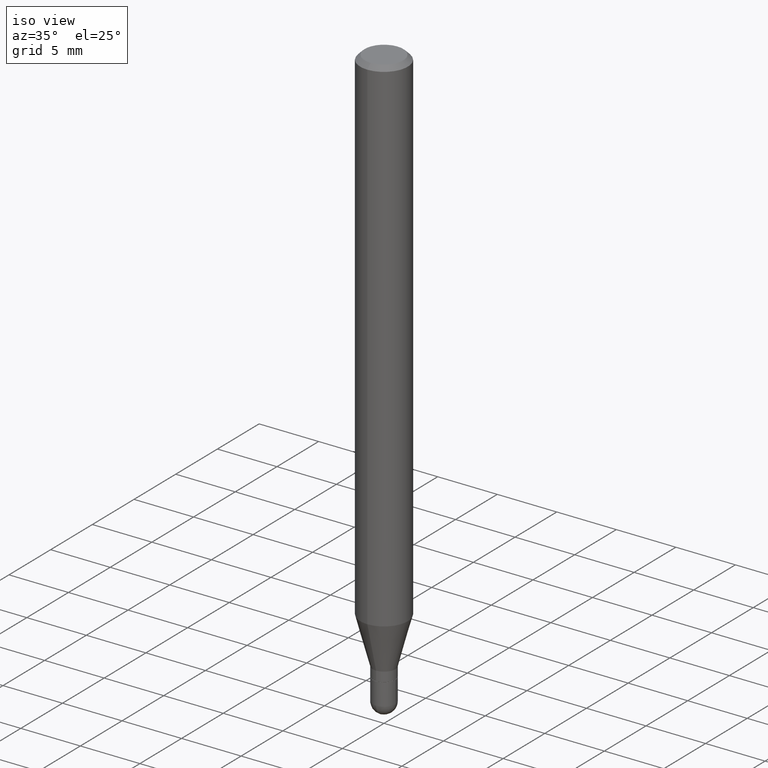
[diagram: clean part render]
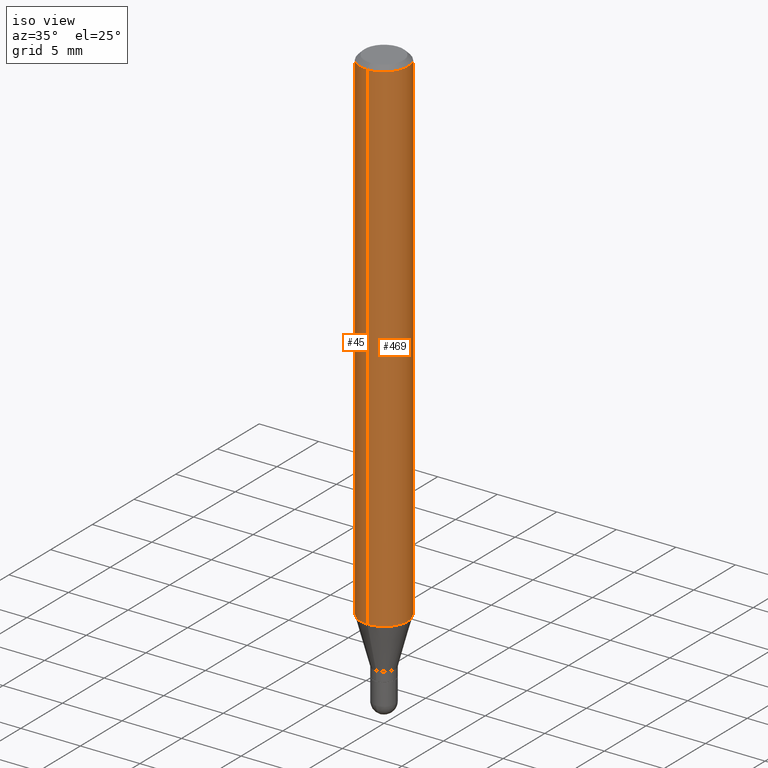
[diagram: same view with one multi-face feature highlighted, each face labeled with its STEP entity id]
A machine part, iso view. The highlighted faces form ONE feature: a constant-radius fillet chain: 2 tangent blend faces with common blend radius 2.0002 mm. The faces share edges in the B-rep.
Their STEP definitions:
[1] entity #45 (Cylinder):
#9 = DIRECTION ( 'NONE',  ( -2.445444900706578132E-29, 3.491515572849056349E-15, 1.000000000000000000 ) ) ;
#10 = CARTESIAN_POINT ( 'NONE',  ( 5.595524044111200197E-16, 0.07874999999999994504, -0.01500000000000004108 ) ) ;
#11 = ORIENTED_EDGE ( 'NONE', *, *, #265, .F. ) ;
#16 = DIRECTION ( 'NONE',  ( -2.445444900706578413E-29, 3.491515572849055955E-15, 1.000000000000000000 ) ) ;
#18 = EDGE_LOOP ( 'NONE', ( #459, #306, #136, #11 ) ) ;
#19 = CARTESIAN_POINT ( 'NONE',  ( -5.499083108677933457E-16, -0.07875000000000000056, 2.749568513618631485E-16 ) ) ;
#21 = VERTEX_POINT ( 'NONE', #222 ) ;
#31 = CARTESIAN_POINT ( 'NONE',  ( 5.595524044111194280E-16, 0.07874999999999411637, -1.672179699107027684 ) ) ;
#39 = DIRECTION ( 'NONE',  ( -2.445444900706578413E-29, 3.491515572849055955E-15, 1.000000000000000000 ) ) ;
#45 = ADVANCED_FACE ( 'NONE', ( #202 ), #159, .T. ) ;
#57 = CARTESIAN_POINT ( 'NONE',  ( 4.089223318246340939E-29, -5.838441460034234985E-15, -1.672179699107027462 ) ) ;
#82 = CARTESIAN_POINT ( 'NONE',  ( 3.668167351059810218E-31, -5.237273359273502137E-17, -0.01499999999999976526 ) ) ;
#85 = AXIS2_PLACEMENT_3D ( 'NONE', #82, #39, #102 ) ;
#102 = DIRECTION ( 'NONE',  ( -6.982962677686264344E-15, -1.000000000000000000, 3.496114991891765576E-15 ) ) ;
#136 = ORIENTED_EDGE ( 'NONE', *, *, #402, .T. ) ;
#159 = CYLINDRICAL_SURFACE ( 'NONE', #177, 0.07875000000000000056 ) ;
#177 = AXIS2_PLACEMENT_3D ( 'NONE', #197, #275, #363 ) ;
#178 = DIRECTION ( 'NONE',  ( -2.445444900706578132E-29, 3.491515572849056349E-15, 1.000000000000000000 ) ) ;
#197 = CARTESIAN_POINT ( 'NONE',  ( 0.000000000000000000, 0.000000000000000000, 0.000000000000000000 ) ) ;
#202 = FACE_OUTER_BOUND ( 'NONE', #18, .T. ) ;
#204 = LINE ( 'NONE', #251, #348 ) ;
#216 = LINE ( 'NONE', #19, #453 ) ;
#220 = VERTEX_POINT ( 'NONE', #10 ) ;
#222 = CARTESIAN_POINT ( 'NONE',  ( -5.499083108677930499E-16, -0.07875000000000004219, -0.01499999999999948944 ) ) ;
#232 = CARTESIAN_POINT ( 'NONE',  ( -5.499083108677527193E-16, -0.07875000000000587086, -1.672179699107027018 ) ) ;
#241 = DIRECTION ( 'NONE',  ( -6.982962677686264344E-15, -1.000000000000000000, 3.469013325287953293E-15 ) ) ;
#251 = CARTESIAN_POINT ( 'NONE',  ( 5.595524044110787031E-16, 0.07875000000000000056, -2.749568513618631485E-16 ) ) ;
#265 = EDGE_CURVE ( 'NONE', #220, #21, #361, .T. ) ;
#275 = DIRECTION ( 'NONE',  ( -2.445444900706578413E-29, 3.491515572849055955E-15, 1.000000000000000000 ) ) ;
#306 = ORIENTED_EDGE ( 'NONE', *, *, #321, .T. ) ;
#321 = EDGE_CURVE ( 'NONE', #462, #495, #508, .T. ) ;
#338 = EDGE_CURVE ( 'NONE', #462, #220, #204, .T. ) ;
#348 = VECTOR ( 'NONE', #9, 39.37007874015748143 ) ;
#356 = AXIS2_PLACEMENT_3D ( 'NONE', #57, #16, #241 ) ;
#361 = CIRCLE ( 'NONE', #85, 0.07875000000000000056 ) ;
#363 = DIRECTION ( 'NONE',  ( -6.982962677686264344E-15, -1.000000000000000000, 3.491515572849055955E-15 ) ) ;
#402 = EDGE_CURVE ( 'NONE', #495, #21, #216, .T. ) ;
#453 = VECTOR ( 'NONE', #178, 39.37007874015748143 ) ;
#459 = ORIENTED_EDGE ( 'NONE', *, *, #338, .F. ) ;
#462 = VERTEX_POINT ( 'NONE', #31 ) ;
#495 = VERTEX_POINT ( 'NONE', #232 ) ;
#508 = CIRCLE ( 'NONE', #356, 0.07875000000000000056 ) ;
[2] entity #469 (Cylinder):
#9 = DIRECTION ( 'NONE',  ( -2.445444900706578132E-29, 3.491515572849056349E-15, 1.000000000000000000 ) ) ;
#10 = CARTESIAN_POINT ( 'NONE',  ( 5.595524044111200197E-16, 0.07874999999999994504, -0.01500000000000004108 ) ) ;
#19 = CARTESIAN_POINT ( 'NONE',  ( -5.499083108677933457E-16, -0.07875000000000000056, 2.749568513618631485E-16 ) ) ;
#21 = VERTEX_POINT ( 'NONE', #222 ) ;
#23 = CARTESIAN_POINT ( 'NONE',  ( 0.000000000000000000, 0.000000000000000000, 0.000000000000000000 ) ) ;
#31 = CARTESIAN_POINT ( 'NONE',  ( 5.595524044111194280E-16, 0.07874999999999411637, -1.672179699107027684 ) ) ;
#63 = CARTESIAN_POINT ( 'NONE',  ( 3.668167351059810218E-31, -5.237273359273502137E-17, -0.01499999999999976526 ) ) ;
#68 = ORIENTED_EDGE ( 'NONE', *, *, #338, .T. ) ;
#72 = ORIENTED_EDGE ( 'NONE', *, *, #402, .F. ) ;
#74 = ORIENTED_EDGE ( 'NONE', *, *, #191, .F. ) ;
#92 = AXIS2_PLACEMENT_3D ( 'NONE', #63, #281, #217 ) ;
#114 = AXIS2_PLACEMENT_3D ( 'NONE', #168, #239, #413 ) ;
#120 = AXIS2_PLACEMENT_3D ( 'NONE', #23, #183, #353 ) ;
#168 = CARTESIAN_POINT ( 'NONE',  ( 4.089223318246340939E-29, -5.838441460034234985E-15, -1.672179699107027462 ) ) ;
#178 = DIRECTION ( 'NONE',  ( -2.445444900706578132E-29, 3.491515572849056349E-15, 1.000000000000000000 ) ) ;
#183 = DIRECTION ( 'NONE',  ( -2.445444900706578413E-29, 3.491515572849055955E-15, 1.000000000000000000 ) ) ;
#189 = CYLINDRICAL_SURFACE ( 'NONE', #120, 0.07875000000000000056 ) ;
#191 = EDGE_CURVE ( 'NONE', #21, #220, #333, .T. ) ;
#204 = LINE ( 'NONE', #251, #348 ) ;
#216 = LINE ( 'NONE', #19, #453 ) ;
#217 = DIRECTION ( 'NONE',  ( -6.982962677686264344E-15, -1.000000000000000000, 3.496114991891765576E-15 ) ) ;
#220 = VERTEX_POINT ( 'NONE', #10 ) ;
#222 = CARTESIAN_POINT ( 'NONE',  ( -5.499083108677930499E-16, -0.07875000000000004219, -0.01499999999999948944 ) ) ;
#232 = CARTESIAN_POINT ( 'NONE',  ( -5.499083108677527193E-16, -0.07875000000000587086, -1.672179699107027018 ) ) ;
#239 = DIRECTION ( 'NONE',  ( -2.445444900706578413E-29, 3.491515572849055955E-15, 1.000000000000000000 ) ) ;
#251 = CARTESIAN_POINT ( 'NONE',  ( 5.595524044110787031E-16, 0.07875000000000000056, -2.749568513618631485E-16 ) ) ;
#271 = CIRCLE ( 'NONE', #114, 0.07875000000000000056 ) ;
#272 = EDGE_CURVE ( 'NONE', #495, #462, #271, .T. ) ;
#281 = DIRECTION ( 'NONE',  ( -2.445444900706578413E-29, 3.491515572849055955E-15, 1.000000000000000000 ) ) ;
#296 = ORIENTED_EDGE ( 'NONE', *, *, #272, .T. ) ;
#333 = CIRCLE ( 'NONE', #92, 0.07875000000000000056 ) ;
#338 = EDGE_CURVE ( 'NONE', #462, #220, #204, .T. ) ;
#348 = VECTOR ( 'NONE', #9, 39.37007874015748143 ) ;
#353 = DIRECTION ( 'NONE',  ( -6.982962677686264344E-15, -1.000000000000000000, 3.491515572849055955E-15 ) ) ;
#396 = EDGE_LOOP ( 'NONE', ( #296, #68, #74, #72 ) ) ;
#402 = EDGE_CURVE ( 'NONE', #495, #21, #216, .T. ) ;
#413 = DIRECTION ( 'NONE',  ( -6.982962677686264344E-15, -1.000000000000000000, 3.469013325287953293E-15 ) ) ;
#453 = VECTOR ( 'NONE', #178, 39.37007874015748143 ) ;
#462 = VERTEX_POINT ( 'NONE', #31 ) ;
#463 = FACE_OUTER_BOUND ( 'NONE', #396, .T. ) ;
#469 = ADVANCED_FACE ( 'NONE', ( #463 ), #189, .T. ) ;
#495 = VERTEX_POINT ( 'NONE', #232 ) ;